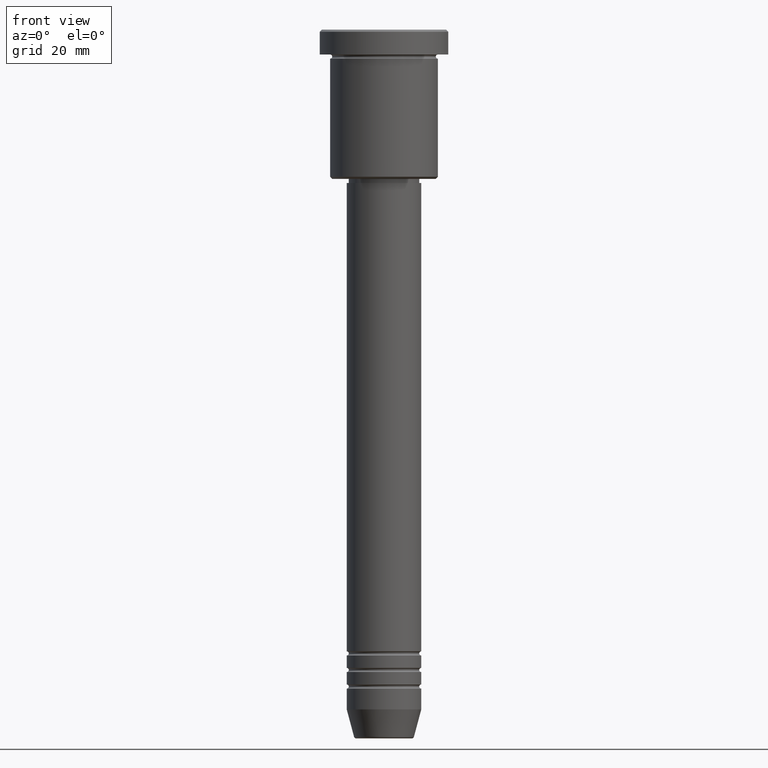
[diagram: clean part render]
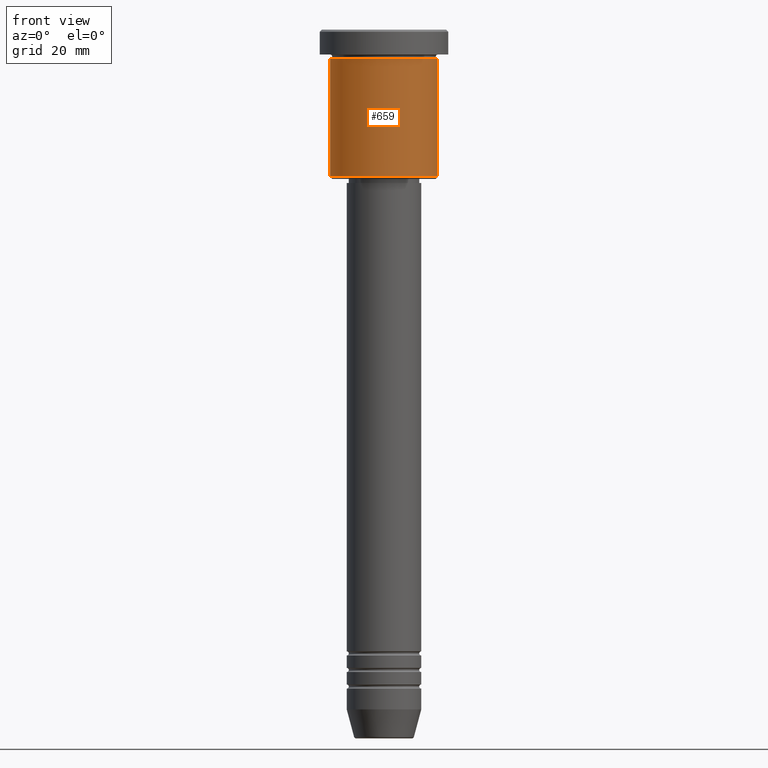
[diagram: same view with one face highlighted and labeled with its STEP entity id]
A machine part, front view. The second image highlights one B-rep face of the part: STEP entity #659.
In plain terms, the highlighted cylindrical surface (partial cylindrical patch) has radius 13 mm, axis along (-0, -0, 1).
Its self-contained STEP definition (entity closure, byte-faithful):
#2 = CARTESIAN_POINT ( 'NONE',  ( 13.00000000000000178, 0.000000000000000000, -35.49999999999999289 ) ) ;
#63 = EDGE_CURVE ( 'NONE', #635, #1160, #377, .T. ) ;
#89 = EDGE_CURVE ( 'NONE', #872, #297, #451, .T. ) ;
#91 = CARTESIAN_POINT ( 'NONE',  ( 13.00000000000000178, 0.000000000000000000, -6.999999999999995559 ) ) ;
#120 = VECTOR ( 'NONE', #646, 1000.000000000000000 ) ;
#142 = ORIENTED_EDGE ( 'NONE', *, *, #63, .T. ) ;
#172 = CYLINDRICAL_SURFACE ( 'NONE', #711, 13.00000000000000178 ) ;
#202 = CIRCLE ( 'NONE', #443, 13.00000000000000178 ) ;
#253 = DIRECTION ( 'NONE',  ( -0.000000000000000000, -0.000000000000000000, 1.000000000000000000 ) ) ;
#267 = CARTESIAN_POINT ( 'NONE',  ( 0.000000000000000000, 0.000000000000000000, -6.999999999999995559 ) ) ;
#276 = DIRECTION ( 'NONE',  ( -1.000000000000000000, 0.000000000000000000, 0.000000000000000000 ) ) ;
#297 = VERTEX_POINT ( 'NONE', #685 ) ;
#334 = EDGE_CURVE ( 'NONE', #872, #635, #1129, .T. ) ;
#339 = VECTOR ( 'NONE', #1109, 1000.000000000000000 ) ;
#377 = LINE ( 'NONE', #632, #339 ) ;
#431 = DIRECTION ( 'NONE',  ( 1.000000000000000000, 0.000000000000000000, 0.000000000000000000 ) ) ;
#433 = ORIENTED_EDGE ( 'NONE', *, *, #1077, .F. ) ;
#443 = AXIS2_PLACEMENT_3D ( 'NONE', #267, #253, #431 ) ;
#451 = LINE ( 'NONE', #830, #120 ) ;
#495 = EDGE_LOOP ( 'NONE', ( #609, #927, #142, #433 ) ) ;
#609 = ORIENTED_EDGE ( 'NONE', *, *, #89, .F. ) ;
#629 = FACE_OUTER_BOUND ( 'NONE', #495, .T. ) ;
#632 = CARTESIAN_POINT ( 'NONE',  ( 13.00000000000000178, 0.000000000000000000, 0.000000000000000000 ) ) ;
#635 = VERTEX_POINT ( 'NONE', #2 ) ;
#645 = DIRECTION ( 'NONE',  ( 1.000000000000000000, 0.000000000000000000, 0.000000000000000000 ) ) ;
#646 = DIRECTION ( 'NONE',  ( -0.000000000000000000, -0.000000000000000000, 1.000000000000000000 ) ) ;
#659 = ADVANCED_FACE ( 'NONE', ( #629 ), #172, .T. ) ;
#685 = CARTESIAN_POINT ( 'NONE',  ( -13.00000000000000178, 1.592040838891559293E-15, -6.999999999999995559 ) ) ;
#711 = AXIS2_PLACEMENT_3D ( 'NONE', #1078, #1095, #645 ) ;
#741 = DIRECTION ( 'NONE',  ( -0.000000000000000000, -0.000000000000000000, 1.000000000000000000 ) ) ;
#830 = CARTESIAN_POINT ( 'NONE',  ( -13.00000000000000178, 1.592040838891559293E-15, 0.000000000000000000 ) ) ;
#872 = VERTEX_POINT ( 'NONE', #1139 ) ;
#927 = ORIENTED_EDGE ( 'NONE', *, *, #334, .T. ) ;
#1077 = EDGE_CURVE ( 'NONE', #297, #1160, #202, .T. ) ;
#1078 = CARTESIAN_POINT ( 'NONE',  ( 0.000000000000000000, 0.000000000000000000, 0.000000000000000000 ) ) ;
#1095 = DIRECTION ( 'NONE',  ( -0.000000000000000000, -0.000000000000000000, 1.000000000000000000 ) ) ;
#1109 = DIRECTION ( 'NONE',  ( -0.000000000000000000, -0.000000000000000000, 1.000000000000000000 ) ) ;
#1117 = CARTESIAN_POINT ( 'NONE',  ( 0.000000000000000000, 0.000000000000000000, -35.49999999999999289 ) ) ;
#1129 = CIRCLE ( 'NONE', #1169, 13.00000000000000178 ) ;
#1139 = CARTESIAN_POINT ( 'NONE',  ( -13.00000000000000178, 1.592040838891559293E-15, -35.49999999999999289 ) ) ;
#1160 = VERTEX_POINT ( 'NONE', #91 ) ;
#1169 = AXIS2_PLACEMENT_3D ( 'NONE', #1117, #741, #276 ) ;